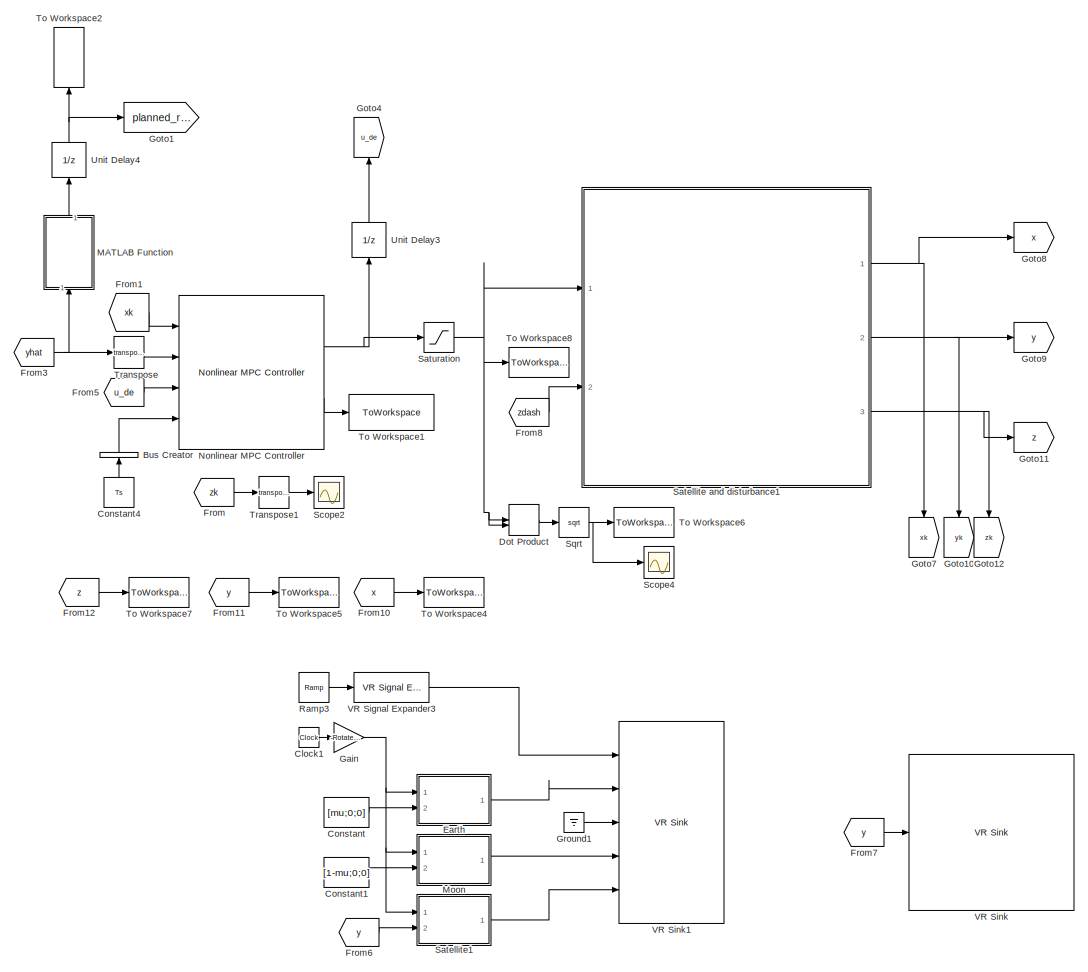
[diagram: root canvas - part 1/2, right side, full height]
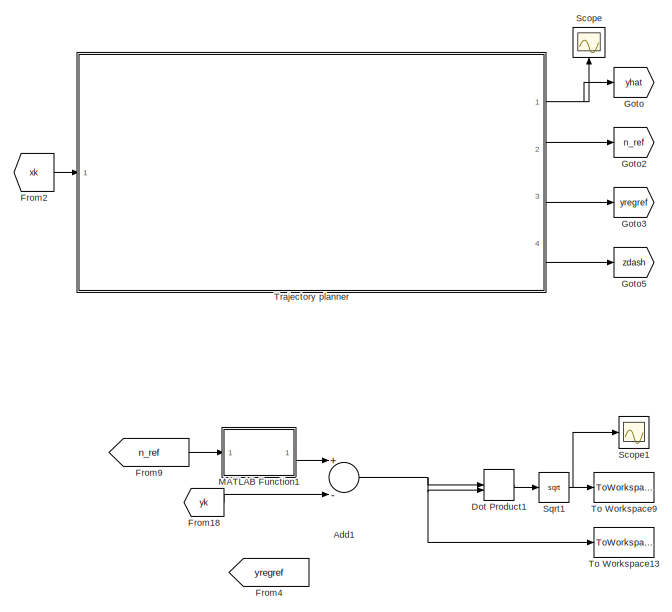
[diagram: root canvas - part 2/2, middle left region]
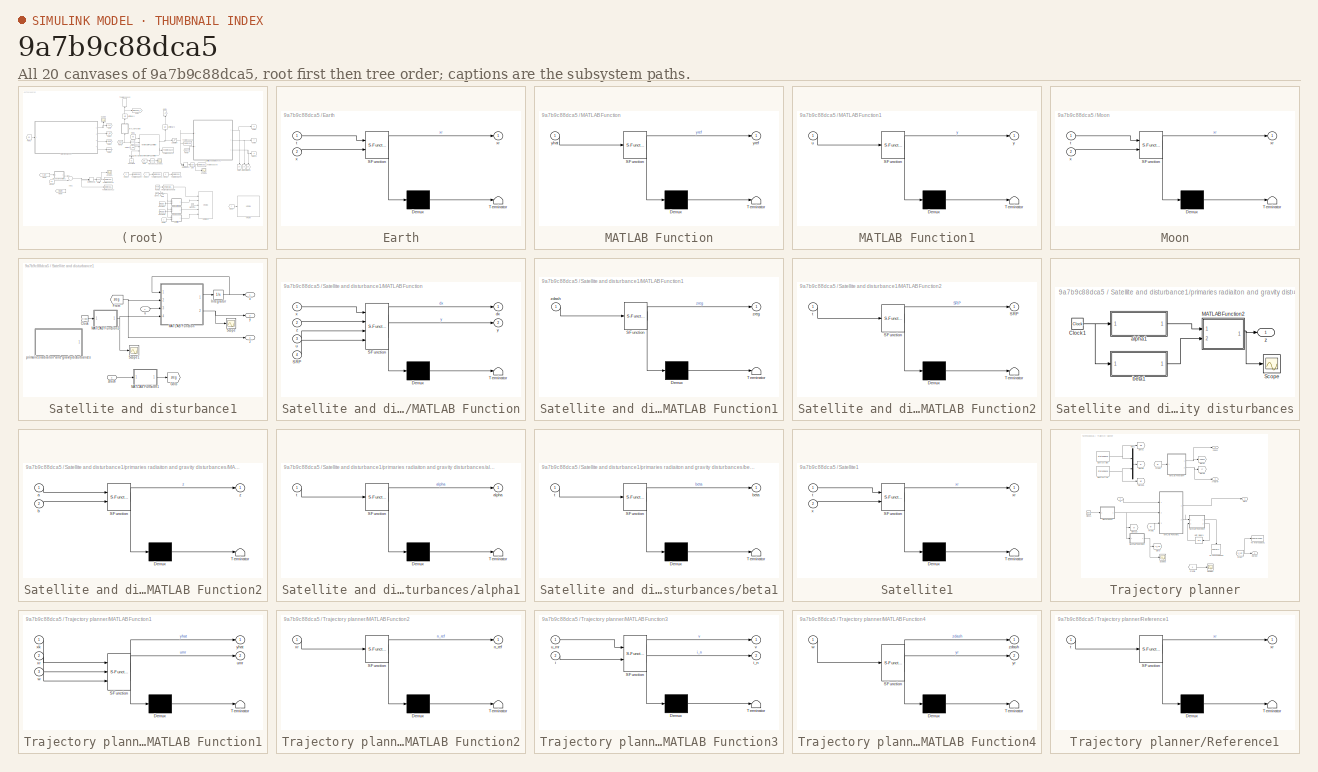
[diagram: thumbnail index - all 20 canvases of the model, root first then tree order]
MODEL slx_9a7b9c88dca5
KIND model
CONFIG AbsTol = auto
CONFIG EnableMultiTasking = off
CONFIG FixedStep = auto
CONFIG MaxStep = auto
CONFIG MinStep = auto
CONFIG RelTol = 1e-3
CONFIG SampleTimeConstraint = Unconstrained
CONFIG Solver = VariableStepAuto
CONFIG SolverName = VariableStepAuto
CONFIG StartTime = 0.0
CONFIG StopTime = simTime
BLOCK [Sum] Add1
  InputSameDT = off
  Inputs = +-
  OutDataTypeStr = Inherit: Inherit via internal rule
  Ports = [2, 1]
  SaturateOnIntegerOverflow = off
BLOCK [BusCreator] Bus Creator
  DisplayOption = bar
  InheritFromInputs = off
  Inputs = 1
  NonVirtualBus = on
  OutDataTypeStr = Bus: myBusObject_1
  Ports = [1, 1]
BLOCK [Clock] Clock1
BLOCK [Constant] Constant
  Value = [mu;0;0]
BLOCK [Constant] Constant1
  Value = [1-mu;0;0]
BLOCK [Constant] Constant4
  Value = Ts
BLOCK [DotProduct] Dot Product
  OutDataTypeStr = Inherit: Inherit via internal rule
BLOCK [DotProduct] Dot Product1
  OutDataTypeStr = Inherit: Inherit via internal rule
BLOCK [SubSystem] Earth
  ErrorFcn = Stateflow.Translate.translate
  PermitHierarchicalResolution = ExplicitOnly
  Ports = [2, 1]
  RequestExecContextInheritance = off
  SFBlockType = MATLAB Function
  TreatAsAtomicUnit = on
BLOCK [Demux] Earth/ Demux 
  Outputs = 1
  Ports = [1, 1]
BLOCK [S-Function] Earth/ SFunction 
  EnableBusSupport = on
  FunctionName = sf_sfun
  PortCounts = [2 2]
  Ports = [2, 2]
  SFcnIsStateOwnerBlock = off
  SFunctionDeploymentMode = off
  Tag = Stateflow S-Function 3
BLOCK [Terminator] Earth/ Terminator 
BLOCK [Inport] Earth/t
  IconDisplay = Port number
BLOCK [Inport] Earth/x
  IconDisplay = Port number
  Port = 2
BLOCK [Outport] Earth/xr
  IconDisplay = Port number
BLOCK [From] From
  GotoTag = zk
BLOCK [From] From1
  GotoTag = xk
BLOCK [From] From10
  GotoTag = x
BLOCK [From] From11
  GotoTag = y
BLOCK [From] From12
  GotoTag = z
BLOCK [From] From18
  GotoTag = yk
BLOCK [From] From2
  GotoTag = xk
BLOCK [From] From3
  GotoTag = yhat
BLOCK [From] From4
  GotoTag = yregref
BLOCK [From] From5
  GotoTag = u_de
BLOCK [From] From6
  GotoTag = y
BLOCK [From] From7
  Commented = on
  GotoTag = y
BLOCK [From] From8
  GotoTag = zdash
BLOCK [From] From9
  GotoTag = n_ref
BLOCK [Gain] Gain
  Gain = -Rotate_w
  OutDataTypeStr = Inherit: Inherit via internal rule
  ParamDataTypeStr = Inherit: Inherit via internal rule
  SaturateOnIntegerOverflow = off
BLOCK [Goto] Goto
  GotoTag = yhat
BLOCK [Goto] Goto1
  GotoTag = planned_ref
BLOCK [Goto] Goto10
  GotoTag = yk
BLOCK [Goto] Goto11
  GotoTag = z
BLOCK [Goto] Goto12
  GotoTag = zk
BLOCK [Goto] Goto2
  GotoTag = n_ref
BLOCK [Goto] Goto3
  GotoTag = yregref
BLOCK [Goto] Goto4
  GotoTag = u_de
BLOCK [Goto] Goto5
  GotoTag = zdash
BLOCK [Goto] Goto7
  GotoTag = xk
BLOCK [Goto] Goto8
  GotoTag = x
BLOCK [Goto] Goto9
  GotoTag = y
BLOCK [Ground] Ground1
BLOCK [SubSystem] MATLAB Function
  ErrorFcn = Stateflow.Translate.translate
  PermitHierarchicalResolution = ExplicitOnly
  Ports = [1, 1]
  RequestExecContextInheritance = off
  SFBlockType = MATLAB Function
  TreatAsAtomicUnit = on
BLOCK [Demux] MATLAB Function/ Demux 
  Outputs = 1
  Ports = [1, 1]
BLOCK [S-Function] MATLAB Function/ SFunction 
  EnableBusSupport = on
  FunctionName = sf_sfun
  PortCounts = [1 2]
  Ports = [1, 2]
  SFcnIsStateOwnerBlock = off
  SFunctionDeploymentMode = off
  Tag = Stateflow S-Function 2
BLOCK [Terminator] MATLAB Function/ Terminator 
BLOCK [Inport] MATLAB Function/yhat
  IconDisplay = Port number
BLOCK [Outport] MATLAB Function/yref
  IconDisplay = Port number
BLOCK [SubSystem] MATLAB Function1
  ErrorFcn = Stateflow.Translate.translate
  PermitHierarchicalResolution = ExplicitOnly
  Ports = [1, 1]
  RequestExecContextInheritance = off
  SFBlockType = MATLAB Function
  TreatAsAtomicUnit = on
BLOCK [Demux] MATLAB Function1/ Demux 
  Outputs = 1
  Ports = [1, 1]
BLOCK [S-Function] MATLAB Function1/ SFunction 
  EnableBusSupport = on
  FunctionName = sf_sfun
  PortCounts = [1 2]
  Ports = [1, 2]
  SFcnIsStateOwnerBlock = off
  SFunctionDeploymentMode = off
  Tag = Stateflow S-Function 16
BLOCK [Terminator] MATLAB Function1/ Terminator 
BLOCK [Inport] MATLAB Function1/u
  IconDisplay = Port number
BLOCK [Outport] MATLAB Function1/y
  IconDisplay = Port number
BLOCK [SubSystem] Moon
  ErrorFcn = Stateflow.Translate.translate
  PermitHierarchicalResolution = ExplicitOnly
  Ports = [2, 1]
  RequestExecContextInheritance = off
  SFBlockType = MATLAB Function
  TreatAsAtomicUnit = on
BLOCK [Demux] Moon/ Demux 
  Outputs = 1
  Ports = [1, 1]
BLOCK [S-Function] Moon/ SFunction 
  EnableBusSupport = on
  FunctionName = sf_sfun
  PortCounts = [2 2]
  Ports = [2, 2]
  SFcnIsStateOwnerBlock = off
  SFunctionDeploymentMode = off
  Tag = Stateflow S-Function 7
BLOCK [Terminator] Moon/ Terminator 
BLOCK [Inport] Moon/t
  IconDisplay = Port number
BLOCK [Inport] Moon/x
  IconDisplay = Port number
  Port = 2
BLOCK [Outport] Moon/xr
  IconDisplay = Port number
BLOCK [Reference] Nonlinear MPC Controller  REF=mpclib/Nonlinear MPC Controller  (lib defined in mdl_ae329e0e0455)
  Ports = [4, 2]
  SCDEnableBlockLinearizationSpecification = on
  SourceBlock = mpclib/Nonlinear MPC Controller
  SourceProductBaseCode = MP
  SourceProductName = Model Predictive Control Toolbox
  SourceType = NonlinearMPC
BLOCK [Reference] Ramp3  REF=simulink/Sources/Ramp
  Ports = [0, 1]
  SourceBlock = simulink/Sources/Ramp
  SourceProductBaseCode = SL
  SourceProductName = Simulink
  SourceType = Ramp
BLOCK [SubSystem] Satellite and disturbance1
  Ports = [2, 3]
  RequestExecContextInheritance = off
BLOCK [Clock] Satellite and disturbance1/Clock
BLOCK [From] Satellite and disturbance1/From
  GotoTag = zreg
BLOCK [Goto] Satellite and disturbance1/Goto
  GotoTag = zreg
BLOCK [Integrator] Satellite and disturbance1/Integrator
  InitialCondition = x0
  Ports = [1, 1]
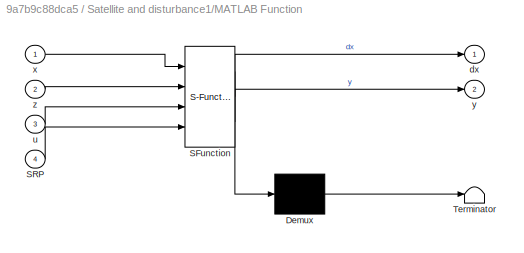
BLOCK [SubSystem] Satellite and disturbance1/MATLAB Function
  ErrorFcn = Stateflow.Translate.translate
  PermitHierarchicalResolution = ExplicitOnly
  Ports = [4, 2]
  RequestExecContextInheritance = off
  SFBlockType = MATLAB Function
  TreatAsAtomicUnit = on
BLOCK [Demux] Satellite and disturbance1/MATLAB Function/ Demux 
  Outputs = 1
  Ports = [1, 1]
BLOCK [S-Function] Satellite and disturbance1/MATLAB Function/ SFunction 
  EnableBusSupport = on
  FunctionName = sf_sfun
  Parameters = mu
  PortCounts = [4 3]
  Ports = [4, 3]
  SFcnIsStateOwnerBlock = off
  SFunctionDeploymentMode = off
  Tag = Stateflow S-Function 11
BLOCK [Terminator] Satellite and disturbance1/MATLAB Function/ Terminator 
BLOCK [Inport] Satellite and disturbance1/MATLAB Function/SRP
  IconDisplay = Port number
  Port = 4
BLOCK [Outport] Satellite and disturbance1/MATLAB Function/dx
  IconDisplay = Port number
BLOCK [Inport] Satellite and disturbance1/MATLAB Function/u
  IconDisplay = Port number
  Port = 3
BLOCK [Inport] Satellite and disturbance1/MATLAB Function/x
  IconDisplay = Port number
BLOCK [Outport] Satellite and disturbance1/MATLAB Function/y
  IconDisplay = Port number
  Port = 2
BLOCK [Inport] Satellite and disturbance1/MATLAB Function/z
  IconDisplay = Port number
  Port = 2
BLOCK [SubSystem] Satellite and disturbance1/MATLAB Function1
  ErrorFcn = Stateflow.Translate.translate
  PermitHierarchicalResolution = ExplicitOnly
  Ports = [1, 1]
  RequestExecContextInheritance = off
  SFBlockType = MATLAB Function
  TreatAsAtomicUnit = on
BLOCK [Demux] Satellite and disturbance1/MATLAB Function1/ Demux 
  Outputs = 1
  Ports = [1, 1]
BLOCK [S-Function] Satellite and disturbance1/MATLAB Function1/ SFunction 
  EnableBusSupport = on
  FunctionName = sf_sfun
  Parameters = disturbance
  PortCounts = [1 2]
  Ports = [1, 2]
  SFcnIsStateOwnerBlock = off
  SFunctionDeploymentMode = off
  Tag = Stateflow S-Function 8
BLOCK [Terminator] Satellite and disturbance1/MATLAB Function1/ Terminator 
BLOCK [Inport] Satellite and disturbance1/MATLAB Function1/zdash
  IconDisplay = Port number
BLOCK [Outport] Satellite and disturbance1/MATLAB Function1/zreg
  IconDisplay = Port number
BLOCK [SubSystem] Satellite and disturbance1/MATLAB Function2
  ErrorFcn = Stateflow.Translate.translate
  PermitHierarchicalResolution = ExplicitOnly
  Ports = [1, 1]
  RequestExecContextInheritance = off
  SFBlockType = MATLAB Function
  TreatAsAtomicUnit = on
BLOCK [Demux] Satellite and disturbance1/MATLAB Function2/ Demux 
  Outputs = 1
  Ports = [1, 1]
BLOCK [S-Function] Satellite and disturbance1/MATLAB Function2/ SFunction 
  EnableBusSupport = on
  FunctionName = sf_sfun
  Parameters = Gsc,sped,srp,zeta
  PortCounts = [1 2]
  Ports = [1, 2]
  SFcnIsStateOwnerBlock = off
  SFunctionDeploymentMode = off
  Tag = Stateflow S-Function 15
BLOCK [Terminator] Satellite and disturbance1/MATLAB Function2/ Terminator 
BLOCK [Outport] Satellite and disturbance1/MATLAB Function2/SRP
  IconDisplay = Port number
BLOCK [Inport] Satellite and disturbance1/MATLAB Function2/t
  IconDisplay = Port number
BLOCK [Scope] Satellite and disturbance1/Scope
  Floating = off
  NumInputPorts = 1
  Ports = [1]
  ScopeSpecificationString = Simulink.scopes.TimeScopeBlockCfg('CurrentConfiguration', extmgr.ConfigurationSet(extmgr.Configuration('Core','General UI',true),extmgr.Configuration('Core','Source UI',true),extmgr.Configuration('Sources','WiredSimulink',true,'DataLoggingVariableName','ScopeData2'),extmgr.Configuration('Visuals','Time Domain',true,'SerializedDisplays',{struct('MinYLimReal','-0.26036','MaxYLimReal','1.35737','YLab...<+1525ch>
BLOCK [Scope] Satellite and disturbance1/Scope1
  Floating = off
  NumInputPorts = 1
  Ports = [1]
  ScopeSpecificationString = Simulink.scopes.TimeScopeBlockCfg('CurrentConfiguration', extmgr.ConfigurationSet(extmgr.Configuration('Core','General UI',true),extmgr.Configuration('Core','Source UI',true),extmgr.Configuration('Sources','WiredSimulink',true,'DataLoggingVariableName','ScopeData1'),extmgr.Configuration('Visuals','Time Domain',true,'SerializedDisplays',{struct('MinYLimReal','-0.0000006','MaxYLimReal','0.0000051','...<+1460ch>
BLOCK [SubSystem] Satellite and disturbance1/primaries radiaiton and gravity disturbances
  Ports = [0, 1]
  RequestExecContextInheritance = off
BLOCK [Clock] Satellite and disturbance1/primaries radiaiton and gravity disturbances/Clock1
BLOCK [SubSystem] Satellite and disturbance1/primaries radiaiton and gravity disturbances/MATLAB Function2
  ErrorFcn = Stateflow.Translate.translate
  PermitHierarchicalResolution = ExplicitOnly
  Ports = [2, 1]
  RequestExecContextInheritance = off
  SFBlockType = MATLAB Function
  TreatAsAtomicUnit = on
BLOCK [Demux] Satellite and disturbance1/primaries radiaiton and gravity disturbances/MATLAB Function2/ Demux 
  Outputs = 1
  Ports = [1, 1]
BLOCK [S-Function] Satellite and disturbance1/primaries radiaiton and gravity disturbances/MATLAB Function2/ SFunction 
  EnableBusSupport = on
  FunctionName = sf_sfun
  Parameters = disturbance,mu
  PortCounts = [2 2]
  Ports = [2, 2]
  SFcnIsStateOwnerBlock = off
  SFunctionDeploymentMode = off
  Tag = Stateflow S-Function 12
BLOCK [Terminator] Satellite and disturbance1/primaries radiaiton and gravity disturbances/MATLAB Function2/ Terminator 
BLOCK [Inport] Satellite and disturbance1/primaries radiaiton and gravity disturbances/MATLAB Function2/a
  IconDisplay = Port number
BLOCK [Inport] Satellite and disturbance1/primaries radiaiton and gravity disturbances/MATLAB Function2/b
  IconDisplay = Port number
  Port = 2
BLOCK [Outport] Satellite and disturbance1/primaries radiaiton and gravity disturbances/MATLAB Function2/z
  IconDisplay = Port number
BLOCK [Scope] Satellite and disturbance1/primaries radiaiton and gravity disturbances/Scope
  Floating = off
  NumInputPorts = 1
  Ports = [1]
  ScopeSpecificationString = Simulink.scopes.TimeScopeBlockCfg('CurrentConfiguration', extmgr.ConfigurationSet(extmgr.Configuration('Core','General UI',true),extmgr.Configuration('Core','Source UI',true),extmgr.Configuration('Sources','WiredSimulink',true,'DataLoggingVariableName','ScopeData1'),extmgr.Configuration('Visuals','Time Domain',true,'SerializedDisplays',{struct('MinYLimReal','-1.00000','MaxYLimReal','1.00000','YLab...<+1440ch>
BLOCK [SubSystem] Satellite and disturbance1/primaries radiaiton and gravity disturbances/alpha1
  ErrorFcn = Stateflow.Translate.translate
  PermitHierarchicalResolution = ExplicitOnly
  Ports = [1, 1]
  RequestExecContextInheritance = off
  SFBlockType = MATLAB Function
  TreatAsAtomicUnit = on
BLOCK [Demux] Satellite and disturbance1/primaries radiaiton and gravity disturbances/alpha1/ Demux 
  Outputs = 1
  Ports = [1, 1]
BLOCK [S-Function] Satellite and disturbance1/primaries radiaiton and gravity disturbances/alpha1/ SFunction 
  EnableBusSupport = on
  FunctionName = sf_sfun
  Parameters = a,e,phi
  PortCounts = [1 2]
  Ports = [1, 2]
  SFcnIsStateOwnerBlock = off
  SFunctionDeploymentMode = off
  Tag = Stateflow S-Function 13
BLOCK [Terminator] Satellite and disturbance1/primaries radiaiton and gravity disturbances/alpha1/ Terminator 
BLOCK [Outport] Satellite and disturbance1/primaries radiaiton and gravity disturbances/alpha1/alpha
  IconDisplay = Port number
BLOCK [Inport] Satellite and disturbance1/primaries radiaiton and gravity disturbances/alpha1/t
  IconDisplay = Port number
BLOCK [SubSystem] Satellite and disturbance1/primaries radiaiton and gravity disturbances/beta1
  ErrorFcn = Stateflow.Translate.translate
  PermitHierarchicalResolution = ExplicitOnly
  Ports = [1, 1]
  RequestExecContextInheritance = off
  SFBlockType = MATLAB Function
  TreatAsAtomicUnit = on
BLOCK [Demux] Satellite and disturbance1/primaries radiaiton and gravity disturbances/beta1/ Demux 
  Outputs = 1
  Ports = [1, 1]
BLOCK [S-Function] Satellite and disturbance1/primaries radiaiton and gravity disturbances/beta1/ SFunction 
  EnableBusSupport = on
  FunctionName = sf_sfun
  Parameters = b,e,phi
  PortCounts = [1 2]
  Ports = [1, 2]
  SFcnIsStateOwnerBlock = off
  SFunctionDeploymentMode = off
  Tag = Stateflow S-Function 14
BLOCK [Terminator] Satellite and disturbance1/primaries radiaiton and gravity disturbances/beta1/ Terminator 
BLOCK [Outport] Satellite and disturbance1/primaries radiaiton and gravity disturbances/beta1/beta
  IconDisplay = Port number
BLOCK [Inport] Satellite and disturbance1/primaries radiaiton and gravity disturbances/beta1/t
  IconDisplay = Port number
BLOCK [Outport] Satellite and disturbance1/primaries radiaiton and gravity disturbances/z
  IconDisplay = Port number
BLOCK [Inport] Satellite and disturbance1/u
  IconDisplay = Port number
BLOCK [Outport] Satellite and disturbance1/x
  IconDisplay = Port number
BLOCK [Outport] Satellite and disturbance1/y
  IconDisplay = Port number
  Port = 2
BLOCK [Outport] Satellite and disturbance1/z
  IconDisplay = Port number
  Port = 3
BLOCK [Inport] Satellite and disturbance1/zdash 
  IconDisplay = Port number
  Port = 2
BLOCK [SubSystem] Satellite1
  ErrorFcn = Stateflow.Translate.translate
  PermitHierarchicalResolution = ExplicitOnly
  Ports = [2, 1]
  RequestExecContextInheritance = off
  SFBlockType = MATLAB Function
  TreatAsAtomicUnit = on
BLOCK [Demux] Satellite1/ Demux 
  Outputs = 1
  Ports = [1, 1]
BLOCK [S-Function] Satellite1/ SFunction 
  EnableBusSupport = on
  FunctionName = sf_sfun
  PortCounts = [2 2]
  Ports = [2, 2]
  SFcnIsStateOwnerBlock = off
  SFunctionDeploymentMode = off
  Tag = Stateflow S-Function 5
BLOCK [Terminator] Satellite1/ Terminator 
BLOCK [Inport] Satellite1/t
  IconDisplay = Port number
BLOCK [Inport] Satellite1/x
  IconDisplay = Port number
  Port = 2
BLOCK [Outport] Satellite1/xr
  IconDisplay = Port number
BLOCK [Saturate] Saturation
  InputPortMap = u0
  LowerLimit = -satValue
  Ports = [1, 1]
  UpperLimit = satValue
BLOCK [Scope] Scope
  Floating = off
  NumInputPorts = 1
  Ports = [1]
  ScopeSpecificationString = Simulink.scopes.TimeScopeBlockCfg('CurrentConfiguration', extmgr.ConfigurationSet(extmgr.Configuration('Core','General UI',true),extmgr.Configuration('Core','Source UI',true),extmgr.Configuration('Sources','WiredSimulink',true,'DataLoggingVariableName','ScopeData1'),extmgr.Configuration('Visuals','Time Domain',true,'SerializedDisplays',{struct('MinYLimReal','-1.02205','MaxYLimReal','2.33578','YLab...<+2096ch>
BLOCK [Scope] Scope1
  Floating = off
  NumInputPorts = 1
  Ports = [1]
  ScopeSpecificationString = Simulink.scopes.TimeScopeBlockCfg('CurrentConfiguration', extmgr.ConfigurationSet(extmgr.Configuration('Core','General UI',true),extmgr.Configuration('Core','Source UI',true),extmgr.Configuration('Sources','WiredSimulink',true,'DataLoggingVariableName','ScopeData1'),extmgr.Configuration('Visuals','Time Domain',true,'SerializedDisplays',{struct('MinYLimReal','0.03501','MaxYLimReal','0.11358','YLabe...<+1416ch>
BLOCK [Scope] Scope2
  Floating = off
  NumInputPorts = 1
  Ports = [1]
  ScopeSpecificationString = Simulink.scopes.TimeScopeBlockCfg('CurrentConfiguration', extmgr.ConfigurationSet(extmgr.Configuration('Core','General UI',true),extmgr.Configuration('Core','Source UI',true),extmgr.Configuration('Sources','WiredSimulink',true,'DataLoggingVariableName','ScopeData1'),extmgr.Configuration('Visuals','Time Domain',true,'SerializedDisplays',{struct('MinYLimReal','-6.7957','MaxYLimReal','6.7957','YLabel...<+1410ch>
BLOCK [Scope] Scope4
  Floating = off
  NumInputPorts = 1
  Ports = [1]
  ScopeSpecificationString = Simulink.scopes.TimeScopeBlockCfg('CurrentConfiguration', extmgr.ConfigurationSet(extmgr.Configuration('Core','General UI',true),extmgr.Configuration('Core','Source UI',true),extmgr.Configuration('Sources','WiredSimulink',true,'DataLoggingVariableName','ScopeData1'),extmgr.Configuration('Visuals','Time Domain',true,'SerializedDisplays',{struct('MinYLimReal','-0.05783','MaxYLimReal','1.0649','YLabe...<+1413ch>
BLOCK [Sqrt] Sqrt
BLOCK [Sqrt] Sqrt1
BLOCK [ToWorkspace] To Workspace1
  FixptAsFi = on
  MaxDataPoints = inf
  Ports = [1]
  SampleTime = 10^-3
  VariableName = mrmpcstatus
BLOCK [ToWorkspace] To Workspace13
  FixptAsFi = on
  MaxDataPoints = inf
  Ports = [1]
  SampleTime = 10^-3
  VariableName = error
BLOCK [ToWorkspace] To Workspace2
  FixptAsFi = on
  MaxDataPoints = inf
  Ports = [1]
  SampleTime = delta
  VariableName = xr
BLOCK [ToWorkspace] To Workspace4
  FixptAsFi = on
  MaxDataPoints = inf
  Ports = [1]
  SampleTime = 10^-3
  VariableName = x
BLOCK [ToWorkspace] To Workspace5
  FixptAsFi = on
  MaxDataPoints = inf
  Ports = [1]
  SampleTime = 10^-3
  VariableName = y
BLOCK [ToWorkspace] To Workspace6
  FixptAsFi = on
  MaxDataPoints = inf
  Ports = [1]
  SampleTime = 10^-3
  VariableName = DeltaV
BLOCK [ToWorkspace] To Workspace7
  FixptAsFi = on
  MaxDataPoints = inf
  Ports = [1]
  SampleTime = 10^-3
  VariableName = z
BLOCK [ToWorkspace] To Workspace8
  FixptAsFi = on
  MaxDataPoints = inf
  Ports = [1]
  SampleTime = 10^-3
  VariableName = u
BLOCK [ToWorkspace] To Workspace9
  FixptAsFi = on
  MaxDataPoints = inf
  Ports = [1]
  SampleTime = delta
  VariableName = e_rms
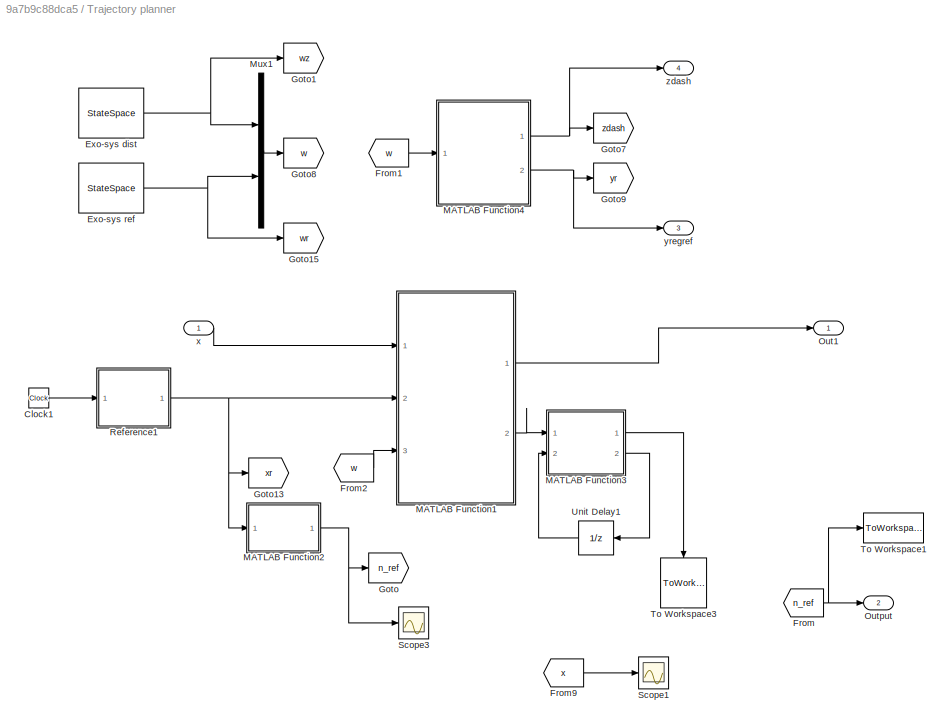
BLOCK [SubSystem] Trajectory planner
  Ports = [1, 4]
  RequestExecContextInheritance = off
BLOCK [Clock] Trajectory planner/Clock1
BLOCK [StateSpace] Trajectory planner/Exo-sys dist
  A = [0 -1;1 0]
  B = [0;0]
  C = eye(2)
  D = zeros(2,1)
  InitialCondition = [1;0]
  Ports = [1, 1]
BLOCK [StateSpace] Trajectory planner/Exo-sys ref 
  A = [0 -Omega;Omega 0]
  B = [0;0]
  C = eye(2)
  D = zeros(2,1)
  InitialCondition = [1;0]
  Ports = [1, 1]
BLOCK [From] Trajectory planner/From
  GotoTag = n_ref
BLOCK [From] Trajectory planner/From1
  GotoTag = w
BLOCK [From] Trajectory planner/From2
  GotoTag = w
BLOCK [From] Trajectory planner/From9
  GotoTag = x
BLOCK [Goto] Trajectory planner/Goto
  GotoTag = n_ref
BLOCK [Goto] Trajectory planner/Goto1
  GotoTag = wz
BLOCK [Goto] Trajectory planner/Goto13
  GotoTag = xr
BLOCK [Goto] Trajectory planner/Goto15
  GotoTag = wr
BLOCK [Goto] Trajectory planner/Goto7
  GotoTag = zdash
BLOCK [Goto] Trajectory planner/Goto8
  GotoTag = w
BLOCK [Goto] Trajectory planner/Goto9
  GotoTag = yr
BLOCK [SubSystem] Trajectory planner/MATLAB Function1
  ErrorFcn = Stateflow.Translate.translate
  PermitHierarchicalResolution = ExplicitOnly
  Ports = [3, 2]
  RequestExecContextInheritance = off
  SFBlockType = MATLAB Function
  SystemSampleTime = 2*delta
  TreatAsAtomicUnit = on
BLOCK [Demux] Trajectory planner/MATLAB Function1/ Demux 
  Outputs = 1
  Ports = [1, 1]
BLOCK [S-Function] Trajectory planner/MATLAB Function1/ SFunction 
  EnableBusSupport = on
  FunctionName = sf_sfun
  Parameters = L2,Omega,a,b,c,delta,disturbance,e,k,mu,planner_type
  PortCounts = [3 3]
  Ports = [3, 3]
  SFcnIsStateOwnerBlock = off
  SFunctionDeploymentMode = off
  Tag = Stateflow S-Function 4
BLOCK [Terminator] Trajectory planner/MATLAB Function1/ Terminator 
BLOCK [Outport] Trajectory planner/MATLAB Function1/umr
  IconDisplay = Port number
  Port = 2
BLOCK [Inport] Trajectory planner/MATLAB Function1/w
  IconDisplay = Port number
  Port = 3
BLOCK [Inport] Trajectory planner/MATLAB Function1/xk
  IconDisplay = Port number
BLOCK [Inport] Trajectory planner/MATLAB Function1/xr
  IconDisplay = Port number
  Port = 2
BLOCK [Outport] Trajectory planner/MATLAB Function1/yhat
  IconDisplay = Port number
BLOCK [SubSystem] Trajectory planner/MATLAB Function2
  ErrorFcn = Stateflow.Translate.translate
  PermitHierarchicalResolution = ExplicitOnly
  Ports = [1, 1]
  RequestExecContextInheritance = off
  SFBlockType = MATLAB Function
  TreatAsAtomicUnit = on
BLOCK [Demux] Trajectory planner/MATLAB Function2/ Demux 
  Outputs = 1
  Ports = [1, 1]
BLOCK [S-Function] Trajectory planner/MATLAB Function2/ SFunction 
  EnableBusSupport = on
  FunctionName = sf_sfun
  PortCounts = [1 2]
  Ports = [1, 2]
  SFcnIsStateOwnerBlock = off
  SFunctionDeploymentMode = off
  Tag = Stateflow S-Function 1
BLOCK [Terminator] Trajectory planner/MATLAB Function2/ Terminator 
BLOCK [Outport] Trajectory planner/MATLAB Function2/n_ref
  IconDisplay = Port number
BLOCK [Inport] Trajectory planner/MATLAB Function2/xr
  IconDisplay = Port number
BLOCK [SubSystem] Trajectory planner/MATLAB Function3
  ErrorFcn = Stateflow.Translate.translate
  PermitHierarchicalResolution = ExplicitOnly
  Ports = [2, 2]
  RequestExecContextInheritance = off
  SFBlockType = MATLAB Function
  SystemSampleTime = delta
  TreatAsAtomicUnit = on
BLOCK [Demux] Trajectory planner/MATLAB Function3/ Demux 
  Outputs = 1
  Ports = [1, 1]
BLOCK [S-Function] Trajectory planner/MATLAB Function3/ SFunction 
  EnableBusSupport = on
  FunctionName = sf_sfun
  PortCounts = [2 3]
  Ports = [2, 3]
  SFcnIsStateOwnerBlock = off
  SFunctionDeploymentMode = off
  Tag = Stateflow S-Function 9
BLOCK [Terminator] Trajectory planner/MATLAB Function3/ Terminator 
BLOCK [Inport] Trajectory planner/MATLAB Function3/i
  IconDisplay = Port number
  Port = 2
BLOCK [Outport] Trajectory planner/MATLAB Function3/i_n
  IconDisplay = Port number
  Port = 2
  VectorParamsAs1DForOutWhenUnconnected = off
BLOCK [Inport] Trajectory planner/MATLAB Function3/u_mr
  IconDisplay = Port number
BLOCK [Outport] Trajectory planner/MATLAB Function3/v
  IconDisplay = Port number
  VectorParamsAs1DForOutWhenUnconnected = off
BLOCK [SubSystem] Trajectory planner/MATLAB Function4
  ErrorFcn = Stateflow.Translate.translate
  PermitHierarchicalResolution = ExplicitOnly
  Ports = [1, 2]
  RequestExecContextInheritance = off
  SFBlockType = MATLAB Function
  TreatAsAtomicUnit = on
BLOCK [Demux] Trajectory planner/MATLAB Function4/ Demux 
  Outputs = 1
  Ports = [1, 1]
BLOCK [S-Function] Trajectory planner/MATLAB Function4/ SFunction 
  EnableBusSupport = on
  FunctionName = sf_sfun
  Parameters = L2,Omega,Omega_z,a,b,c,e,k,mu
  PortCounts = [1 3]
  Ports = [1, 3]
  SFcnIsStateOwnerBlock = off
  SFunctionDeploymentMode = off
  Tag = Stateflow S-Function 6
BLOCK [Terminator] Trajectory planner/MATLAB Function4/ Terminator 
BLOCK [Inport] Trajectory planner/MATLAB Function4/w
  IconDisplay = Port number
BLOCK [Outport] Trajectory planner/MATLAB Function4/yr
  IconDisplay = Port number
  Port = 2
BLOCK [Outport] Trajectory planner/MATLAB Function4/zdash
  IconDisplay = Port number
BLOCK [Mux] Trajectory planner/Mux1
  DisplayOption = bar
  Inputs = 2
  Ports = [2, 1]
BLOCK [Outport] Trajectory planner/Out1
  IconDisplay = Port number
BLOCK [Outport] Trajectory planner/Output
  IconDisplay = Port number
  Port = 2
BLOCK [SubSystem] Trajectory planner/Reference1
  ErrorFcn = Stateflow.Translate.translate
  PermitHierarchicalResolution = ExplicitOnly
  Ports = [1, 1]
  RequestExecContextInheritance = off
  SFBlockType = MATLAB Function
  TreatAsAtomicUnit = on
BLOCK [Demux] Trajectory planner/Reference1/ Demux 
  Outputs = 1
  Ports = [1, 1]
BLOCK [S-Function] Trajectory planner/Reference1/ SFunction 
  EnableBusSupport = on
  FunctionName = sf_sfun
  Parameters = L2,Omega,Omega_z,c,delta,e,k,ref_select
  PortCounts = [1 2]
  Ports = [1, 2]
  SFcnIsStateOwnerBlock = off
  SFunctionDeploymentMode = off
  Tag = Stateflow S-Function 10
BLOCK [Terminator] Trajectory planner/Reference1/ Terminator 
BLOCK [Inport] Trajectory planner/Reference1/t
  IconDisplay = Port number
BLOCK [Outport] Trajectory planner/Reference1/xr
  IconDisplay = Port number
BLOCK [Scope] Trajectory planner/Scope1
  Floating = off
  NumInputPorts = 1
  Ports = [1]
  ScopeSpecificationString = Simulink.scopes.TimeScopeBlockCfg('CurrentConfiguration', extmgr.ConfigurationSet(extmgr.Configuration('Core','General UI',true),extmgr.Configuration('Core','Source UI',true),extmgr.Configuration('Sources','WiredSimulink',true,'DataLoggingVariableName','ScopeData1'),extmgr.Configuration('Visuals','Time Domain',true,'SerializedDisplays',{struct('MinYLimReal','-1.00000','MaxYLimReal','1.00000','YLab...<+1455ch>
BLOCK [Scope] Trajectory planner/Scope3
  Floating = off
  NumInputPorts = 1
  Ports = [1]
  ScopeSpecificationString = Simulink.scopes.TimeScopeBlockCfg('CurrentConfiguration', extmgr.ConfigurationSet(extmgr.Configuration('Core','General UI',true),extmgr.Configuration('Core','Source UI',true),extmgr.Configuration('Sources','WiredSimulink',true,'DataLoggingVariableName','ScopeData1'),extmgr.Configuration('Visuals','Time Domain',true,'SerializedDisplays',{struct('MinYLimReal','-0.35832','MaxYLimReal','1.36193','YLab...<+1534ch>
BLOCK [ToWorkspace] Trajectory planner/To Workspace1
  FixptAsFi = on
  MaxDataPoints = inf
  Ports = [1]
  SampleTime = 10^-3
  VariableName = n_ref
BLOCK [ToWorkspace] Trajectory planner/To Workspace3
  FixptAsFi = on
  MaxDataPoints = inf
  Ports = [1]
  SampleTime = 10^-3
  VariableName = u_mr
BLOCK [UnitDelay] Trajectory planner/Unit Delay1
  HasFrameUpgradeWarning = on
  InitialCondition = 1
  SampleTime = delta
BLOCK [Inport] Trajectory planner/x
  IconDisplay = Port number
BLOCK [Outport] Trajectory planner/yregref 
  IconDisplay = Port number
  Port = 3
BLOCK [Outport] Trajectory planner/zdash 
  IconDisplay = Port number
  Port = 4
BLOCK [Math] Transpose
  Operator = transpose
  Ports = [1, 1]
  SignedPower = off
BLOCK [Math] Transpose1
  Operator = transpose
  Ports = [1, 1]
  SignedPower = off
BLOCK [UnitDelay] Unit Delay3
  HasFrameUpgradeWarning = on
  InitialCondition = u0
  SampleTime = delta
BLOCK [UnitDelay] Unit Delay4
  HasFrameUpgradeWarning = on
  InitialCondition = x0
  SampleTime = delta
BLOCK [Reference] VR Signal Expander3  REF=vrlib/VR Signal Expander
  Ports = [1, 1]
  SourceBlock = vrlib/VR Signal Expander
  SourceProductBaseCode = SL
  SourceProductName = Simulink
  SourceType = VR Signal Expander
BLOCK [Reference] VR Sink  REF=vrlib/VR Sink
  Commented = on
  InstantiateOnLoad = on
  Ports = [1]
  SourceBlock = vrlib/VR Sink
  SourceProductBaseCode = SL
  SourceProductName = Simulink
  SourceType = Virtual Reality Sink
BLOCK [Reference] VR Sink1  REF=vrlib/VR Sink
  InstantiateOnLoad = on
  Ports = [5]
  SourceBlock = vrlib/VR Sink
  SourceProductBaseCode = SL
  SourceProductName = Simulink
  SourceType = Virtual Reality Sink
NET Add1:1 -> Dot Product1:1, Dot Product1:2, To Workspace13:1
LINE Bus Creator:1 -> Nonlinear MPC Controller:4
LINE Clock1:1 -> Gain:1
LINE Constant1:1 -> Moon:2
LINE Constant4:1 -> Bus Creator:1
LINE Constant:1 -> Earth:2
LINE Dot Product1:1 -> Sqrt1:1
LINE Dot Product:1 -> Sqrt:1
LINE Earth:1 -> VR Sink1:2
LINE From10:1 -> To Workspace4:1
LINE From11:1 -> To Workspace5:1
LINE From12:1 -> To Workspace7:1
LINE From18:1 -> Add1:2
LINE From1:1 -> Nonlinear MPC Controller:1
LINE From2:1 -> Trajectory planner:1
NET From3:1 -> MATLAB Function:1, Transpose:1
LINE From5:1 -> Nonlinear MPC Controller:3
LINE From6:1 -> Satellite1:2
LINE From7:1 -> VR Sink:1
LINE From8:1 -> Satellite and disturbance1:2
LINE From9:1 -> MATLAB Function1:1
LINE From:1 -> Transpose1:1
NET Gain:1 -> Earth:1, Moon:1, Satellite1:1
LINE Ground1:1 -> VR Sink1:3
LINE MATLAB Function1:1 -> Add1:1
LINE MATLAB Function:1 -> Unit Delay4:1
LINE Moon:1 -> VR Sink1:4
NET Nonlinear MPC Controller:1 -> Saturation:1, Unit Delay3:1
LINE Nonlinear MPC Controller:2 -> To Workspace1:1
LINE Ramp3:1 -> VR Signal Expander3:1
LINE Satellite and disturbance1/Clock:1 -> Satellite and disturbance1/MATLAB Function2:1
NET Satellite and disturbance1/From:1 -> Satellite and disturbance1/MATLAB Function:2, Satellite and disturbance1/z:1
NET Satellite and disturbance1/Integrator:1 -> Satellite and disturbance1/MATLAB Function:1, Satellite and disturbance1/x:1
LINE Satellite and disturbance1/MATLAB Function1:1 -> Satellite and disturbance1/Goto:1
NET Satellite and disturbance1/MATLAB Function2:1 -> Satellite and disturbance1/MATLAB Function:4, Satellite and disturbance1/Scope1:1
LINE Satellite and disturbance1/MATLAB Function:1 -> Satellite and disturbance1/Integrator:1
NET Satellite and disturbance1/MATLAB Function:2 -> Satellite and disturbance1/Scope:1, Satellite and disturbance1/y:1
NET Satellite and disturbance1/primaries radiaiton and gravity disturbances/Clock1:1 -> Satellite and disturbance1/primaries radiaiton and gravity disturbances/alpha1:1, Satellite and disturbance1/primaries radiaiton and gravity disturbances/beta1:1
NET Satellite and disturbance1/primaries radiaiton and gravity disturbances/MATLAB Function2:1 -> Satellite and disturbance1/primaries radiaiton and gravity disturbances/Scope:1, Satellite and disturbance1/primaries radiaiton and gravity disturbances/z:1
LINE Satellite and disturbance1/primaries radiaiton and gravity disturbances/alpha1:1 -> Satellite and disturbance1/primaries radiaiton and gravity disturbances/MATLAB Function2:1
LINE Satellite and disturbance1/primaries radiaiton and gravity disturbances/beta1:1 -> Satellite and disturbance1/primaries radiaiton and gravity disturbances/MATLAB Function2:2
LINE Satellite and disturbance1/u:1 -> Satellite and disturbance1/MATLAB Function:3
LINE Satellite and disturbance1/zdash :1 -> Satellite and disturbance1/MATLAB Function1:1
NET Satellite and disturbance1:1 -> Goto7:1, Goto8:1
NET Satellite and disturbance1:2 -> Goto10:1, Goto9:1
NET Satellite and disturbance1:3 -> Goto11:1, Goto12:1
LINE Satellite1:1 -> VR Sink1:5
NET Saturation:1 -> Dot Product:1, Dot Product:2, Satellite and disturbance1:1, To Workspace8:1
NET Sqrt1:1 -> Scope1:1, To Workspace9:1
NET Sqrt:1 -> Scope4:1, To Workspace6:1
LINE Trajectory planner/Clock1:1 -> Trajectory planner/Reference1:1
NET Trajectory planner/Exo-sys dist:1 -> Trajectory planner/Goto1:1, Trajectory planner/Mux1:1
NET Trajectory planner/Exo-sys ref :1 -> Trajectory planner/Goto15:1, Trajectory planner/Mux1:2
LINE Trajectory planner/From1:1 -> Trajectory planner/MATLAB Function4:1
LINE Trajectory planner/From2:1 -> Trajectory planner/MATLAB Function1:3
LINE Trajectory planner/From9:1 -> Trajectory planner/Scope1:1
NET Trajectory planner/From:1 -> Trajectory planner/Output:1, Trajectory planner/To Workspace1:1
LINE Trajectory planner/MATLAB Function1:1 -> Trajectory planner/Out1:1
LINE Trajectory planner/MATLAB Function1:2 -> Trajectory planner/MATLAB Function3:1
NET Trajectory planner/MATLAB Function2:1 -> Trajectory planner/Goto:1, Trajectory planner/Scope3:1
LINE Trajectory planner/MATLAB Function3:1 -> Trajectory planner/To Workspace3:1
LINE Trajectory planner/MATLAB Function3:2 -> Trajectory planner/Unit Delay1:1
NET Trajectory planner/MATLAB Function4:1 -> Trajectory planner/Goto7:1, Trajectory planner/zdash :1
NET Trajectory planner/MATLAB Function4:2 -> Trajectory planner/Goto9:1, Trajectory planner/yregref :1
LINE Trajectory planner/Mux1:1 -> Trajectory planner/Goto8:1
NET Trajectory planner/Reference1:1 -> Trajectory planner/Goto13:1, Trajectory planner/MATLAB Function1:2, Trajectory planner/MATLAB Function2:1
LINE Trajectory planner/Unit Delay1:1 -> Trajectory planner/MATLAB Function3:2
LINE Trajectory planner/x:1 -> Trajectory planner/MATLAB Function1:1
NET Trajectory planner:1 -> Goto:1, Scope:1
LINE Trajectory planner:2 -> Goto2:1
LINE Trajectory planner:3 -> Goto3:1
LINE Trajectory planner:4 -> Goto5:1
LINE Transpose1:1 -> Scope2:1
LINE Transpose:1 -> Nonlinear MPC Controller:2
LINE Unit Delay3:1 -> Goto4:1
NET Unit Delay4:1 -> Goto1:1, To Workspace2:1
LINE VR Signal Expander3:1 -> VR Sink1:1
note: NET lines group one-source signal fan-out (src -> all destinations, sorted); 1:1 wires keep LINE
CHART Trajectory planner/MATLAB Function2 states=1 transitions=1
  STATE_LABEL 'eML_blk_kernel()'
  STATE_LABEL 'SCRIPT:\nfunction n_ref = fcn(xr)\n\nn_ref = xr(:,1);\n'
CHART MATLAB Function states=1 transitions=1
  STATE_LABEL 'eML_blk_kernel()'
  STATE_LABEL 'SCRIPT:\nfunction yref = fcn(yhat)\n\nyref = yhat(:,1);\n'
CHART Earth states=1 transitions=1
  STATE_LABEL 'eML_blk_kernel()'
  STATE_LABEL 'SCRIPT:\nfunction xr = Rotate(t,x)\n%#codegen\n\nth = t;\n\nR = [cos(th) sin(th) 0;\n     -sin(th) cos(th) 0;\n     0 0 1];\nxr = R*x;'
CHART Trajectory planner/MATLAB Function1 states=1 transitions=1
  STATE_LABEL 'eML_blk_kernel()'
  STATE_LABEL 'SCRIPT:\nfunction [yhat, umr] = mrcontrol(xk,xr, mu,delta,c, w,k, e, a, b, Omega, disturbance, L2, planner_type)\n\nTz = [b(1)*e 0;0 0;0 -b(1)*e;mu*(1-mu)*a(1)*e 0];\nTr = [k*(1-c(1)+Omega^2)/(2*Omega) 0;0 -k;-k 0];\nS2 = [0 -Omega;Omega 0];\nSeq = [L2;0;0];\nif disturbance == 1\n    wz = w(1:2);\nelse\n    wz = zeros(2,1);\nend\nwr = w(3:4);\npi = [-Tr*wr + Seq;-Tr*S2*wr];\n\nref1 = xr(:,1);\nref2 = xr(:,2);\n% r...<+3608ch>'
CHART Satellite1 states=1 transitions=1
  STATE_LABEL 'eML_blk_kernel()'
  STATE_LABEL 'SCRIPT:\nfunction xr = Rotate(t,x)\n%#codegen\n\nth = t;\n\nR = [cos(th) sin(th) 0;\n     -sin(th) cos(th) 0;\n     0 0 1];\n \nxr = R*x;'
CHART Trajectory planner/MATLAB Function4 states=1 transitions=1
  STATE_LABEL 'eML_blk_kernel()'
  STATE_LABEL 'SCRIPT:\nfunction [zdash,yr] = fcn(w, c, Omega,k, a, b, mu, e, L2, Omega_z)\n\nSeq = [L2;0;0];\n\nT1 = [b(1)*e 0;0 0;0 -b(1)*e;mu*(1-mu)*a(1)*e 0];\nQ1 = [k*(1-c(1)+Omega^2)/(2*Omega) 0;0 -k;-k 0];\n\nzdash = T1*w(1:2);\nyr = Q1*w(3:4) + Seq;\n\n'
CHART Moon states=1 transitions=1
  STATE_LABEL 'eML_blk_kernel()'
  STATE_LABEL 'SCRIPT:\nfunction xr = Rotate(t,x)\n%#codegen\n\nth = t;\n\nR = [cos(th) sin(th) 0;\n     -sin(th) cos(th) 0;\n     0 0 1];\n\nxr = R*x;'
CHART Satellite and disturbance1/MATLAB Function1 states=1 transitions=1
  STATE_LABEL 'eML_blk_kernel()'
  STATE_LABEL 'SCRIPT:\nfunction zreg = fcn(zdash, disturbance)\n\nif disturbance == 1 \n    zreg = zdash;\nelse\n    zreg = zeros(4,1);\nend\n'
CHART Trajectory planner/MATLAB Function3 states=1 transitions=1
  STATE_LABEL 'eML_blk_kernel()'
  STATE_LABEL 'SCRIPT:\nfunction [v,i_n] = fcn(u_mr, i)\nif i <2\n    i_n = i+1; \nelse\n    i_n = 1;\nend\n\nv = u_mr(:, i);\n'
CHART Trajectory planner/Reference1 states=1 transitions=1
  STATE_LABEL 'eML_blk_kernel()'
  STATE_LABEL 'SCRIPT:\nfunction xr = refer(t,c,Omega,Omega_z,L2,k,delta,ref_select,e)\n%#codegen\n\n% delta = 2*delta_b;\nSeq = [L2;0;0;0;0;0];\n\n\nho1 = [(-k*(1-c(1)+Omega^2)/(2*Omega))*cos(Omega*t);\n       k*sin(Omega*t);\n       k*cos(Omega_z*t)];\n   \ndiffho1 = [(k*(1-c(1)+Omega^2)/2)*sin(Omega*t);\n           Omega*k*cos(Omega*t);\n           -Omega_z*k*sin(Omega_z*t)];\n      \n% Halo orbit reference type 1       \n% x...<+493ch>'
CHART Satellite and disturbance1/MATLAB Function states=1 transitions=1
  STATE_LABEL 'eML_blk_kernel()'
  STATE_LABEL 'SCRIPT:\nfunction [dx, y] = Satellite(x,z, u, mu, SRP)\n\nx1 = x(1:3);\nx2 = x(4:6);\n\nM = [-1 0 0;\n    0 -1 0;\n    0 0 0];\n\nN = [0 -1 0;\n    1 0 0;\n    0 0 0];\n\nd1r = [-mu - z(4)/(1-mu);0;0];\nd2r = [1-mu + z(4)/mu;0;0];\n\ned1 = x1 - d1r;\nabsed1 = sqrt(ed1(1)^2+ed1(2)^2+ed1(3)^2);\ned2 = x1 - d2r;\nabsed2 = sqrt(ed2(1)^2+ed2(2)^2+ed2(3)^2);\n\nf1 = x2;\nf2 = -M*x1 - 2*N*x2 - (2*M*x1 + 2*N*x2)*z(1) ...\n      ...<+1225ch>'
CHART Satellite and disturbance1/primaries radiaiton and gravity disturbances/MATLAB Function2 states=1 transitions=1
  STATE_LABEL 'eML_blk_kernel()'
  STATE_LABEL 'SCRIPT:\nfunction z = z(a,b,mu, disturbance)\n%#codegen\nif disturbance == 1\n    z = [b;mu*(1-mu)*a];\nelse\n    z = zeros(4,1);\nend'
CHART Satellite and disturbance1/primaries radiaiton and gravity disturbances/alpha1 states=1 transitions=1
  STATE_LABEL 'eML_blk_kernel()'
  STATE_LABEL 'SCRIPT:\nfunction alpha = a(t,a,phi,e)\n%#codegen\n\na1 = a(1)*e*cos(t+phi);\nalpha = a1;\n'
CHART Satellite and disturbance1/primaries radiaiton and gravity disturbances/beta1 states=1 transitions=1
  STATE_LABEL 'eML_blk_kernel()'
  STATE_LABEL 'SCRIPT:\nfunction beta = b(t,b,phi,e)\n%#codegen\nb1 = b(1)*e*cos(t+phi);\nbd = -b(1)*e*sin(t+phi);\nbeta = [b1;0;bd];\n'
CHART Satellite and disturbance1/MATLAB Function2 states=1 transitions=1
  STATE_LABEL 'eML_blk_kernel()'
  STATE_LABEL 'SCRIPT:\nfunction SRP = fcn(srp, Gsc, sped, zeta,t)\n\nif srp == 1\n    SRP = [(Gsc/sped)*(cos(zeta*t))^2;(Gsc/sped)*(sin(zeta*t))^2;0];\nelse\n    SRP = [0;0;0];\nend\n'
CHART MATLAB Function1 states=1 transitions=1
  STATE_LABEL 'eML_blk_kernel()'
  STATE_LABEL 'SCRIPT:\nfunction y = fcn(u)\n\ny = u(1:3);\n'
